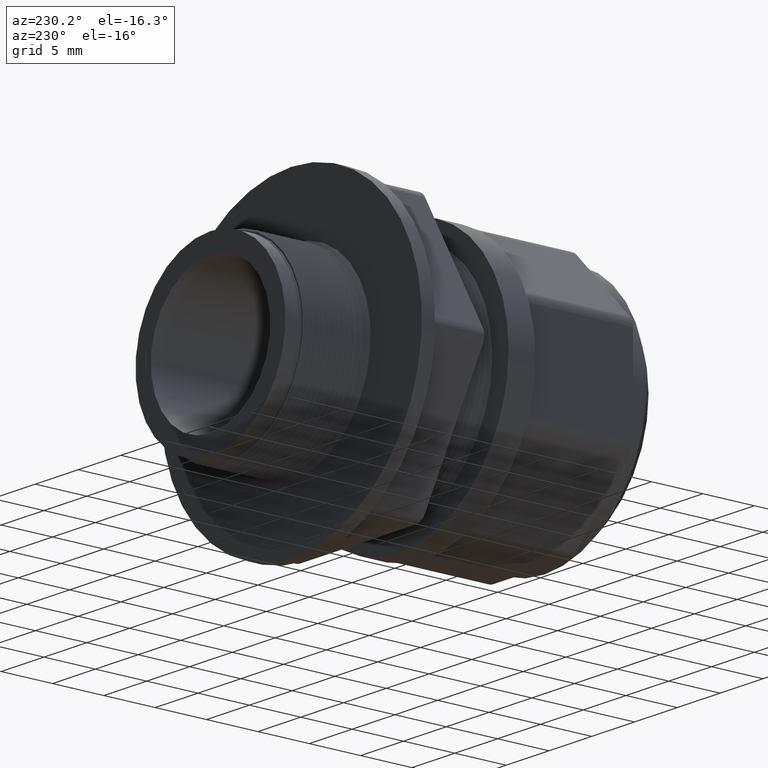
[diagram: clean part render]
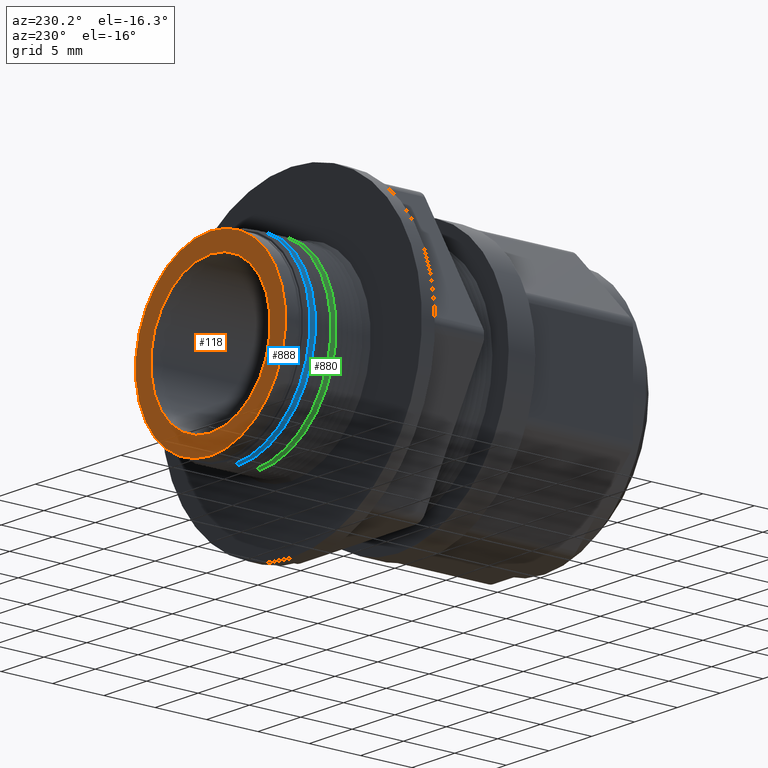
[diagram: same view with three faces highlighted in distinct colors, each labeled with its STEP entity id]
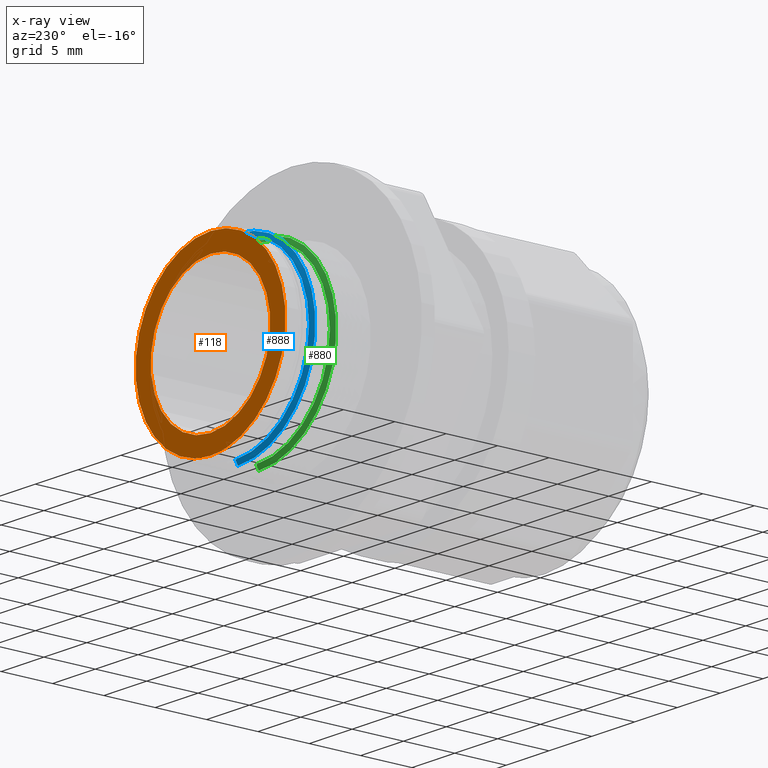
[diagram: x-ray of the same camera — body ghosted, the three highlighted faces saturated]
A machine part, auxiliary view with three faces highlighted in distinct colors.
The next image is the same camera in x-ray (body ghosted, the three faces saturated) — at least one of them is partly hidden behind the body in this view.
Their STEP definitions:

[orange] entity #118 — the highlighted planar face has unit normal (0, 1, 0).
#84 = EDGE_CURVE ( 'NONE', #90, #87, #1489, .T. ) ;
#87 = VERTEX_POINT ( 'NONE', #1562 ) ;
#90 = VERTEX_POINT ( 'NONE', #1561 ) ;
#103 = EDGE_LOOP ( 'NONE', ( #6280, #6272 ) ) ;
#104 = ORIENTED_EDGE ( 'NONE', *, *, #121, .T. ) ;
#105 = EDGE_LOOP ( 'NONE', ( #106, #104 ) ) ;
#106 = ORIENTED_EDGE ( 'NONE', *, *, #124, .T. ) ;
#116 = VERTEX_POINT ( 'NONE', #1594 ) ;
#118 = ADVANCED_FACE ( 'NONE', ( #1639, #1638 ), #1620, .T. ) ;
#121 = EDGE_CURVE ( 'NONE', #128, #116, #1675, .T. ) ;
#124 = EDGE_CURVE ( 'NONE', #116, #128, #1665, .T. ) ;
#128 = VERTEX_POINT ( 'NONE', #1660 ) ;
#1485 = DIRECTION ( 'NONE',  ( 0.0000000000000000000, 0.0000000000000000000, 1.000000000000000000 ) ) ;
#1486 = DIRECTION ( 'NONE',  ( 0.0000000000000000000, 1.000000000000000000, 0.0000000000000000000 ) ) ;
#1487 = CARTESIAN_POINT ( 'NONE',  ( 0.0000000000000000000, 1.330000000000000100, 0.0000000000000000000 ) ) ;
#1488 = AXIS2_PLACEMENT_3D ( 'NONE', #1487, #1486, #1485 ) ;
#1489 = CIRCLE ( 'NONE', #1488, 0.2749999999999999700 ) ;
#1561 = CARTESIAN_POINT ( 'NONE',  ( 3.367778697655221300E-017, 1.330000000000000100, -0.2750000000000000200 ) ) ;
#1562 = CARTESIAN_POINT ( 'NONE',  ( 0.0000000000000000000, 1.330000000000000100, 0.2749999999999999700 ) ) ;
#1594 = CARTESIAN_POINT ( 'NONE',  ( 0.0000000000000000000, 1.330000000000000100, 0.3449220884996295200 ) ) ;
#1619 = AXIS2_PLACEMENT_3D ( 'NONE', #1678, #1677, #1676 ) ;
#1620 = PLANE ( 'NONE',  #1619 ) ;
#1638 = FACE_BOUND ( 'NONE', #103, .T. ) ;
#1639 = FACE_OUTER_BOUND ( 'NONE', #105, .T. ) ;
#1660 = CARTESIAN_POINT ( 'NONE',  ( 4.224077316362913800E-017, 1.330000000000000100, -0.3449220884996295200 ) ) ;
#1661 = DIRECTION ( 'NONE',  ( 0.0000000000000000000, 0.0000000000000000000, 1.000000000000000000 ) ) ;
#1662 = DIRECTION ( 'NONE',  ( 0.0000000000000000000, 1.000000000000000000, 0.0000000000000000000 ) ) ;
#1663 = CARTESIAN_POINT ( 'NONE',  ( 0.0000000000000000000, 1.330000000000000100, 0.0000000000000000000 ) ) ;
#1664 = AXIS2_PLACEMENT_3D ( 'NONE', #1663, #1662, #1661 ) ;
#1665 = CIRCLE ( 'NONE', #1664, 0.3449220884996295200 ) ;
#1671 = DIRECTION ( 'NONE',  ( 0.0000000000000000000, 0.0000000000000000000, 1.000000000000000000 ) ) ;
#1672 = DIRECTION ( 'NONE',  ( 0.0000000000000000000, 1.000000000000000000, 0.0000000000000000000 ) ) ;
#1673 = CARTESIAN_POINT ( 'NONE',  ( 0.0000000000000000000, 1.330000000000000100, 0.0000000000000000000 ) ) ;
#1674 = AXIS2_PLACEMENT_3D ( 'NONE', #1673, #1672, #1671 ) ;
#1675 = CIRCLE ( 'NONE', #1674, 0.3449220884996295200 ) ;
#1676 = DIRECTION ( 'NONE',  ( 0.0000000000000000000, 0.0000000000000000000, 1.000000000000000000 ) ) ;
#1677 = DIRECTION ( 'NONE',  ( 0.0000000000000000000, 1.000000000000000000, 0.0000000000000000000 ) ) ;
#1678 = CARTESIAN_POINT ( 'NONE',  ( -0.3449220884996295200, 1.330000000000000100, 0.0000000000000000000 ) ) ;
#5932 = DIRECTION ( 'NONE',  ( 0.0000000000000000000, 0.0000000000000000000, 1.000000000000000000 ) ) ;
#5933 = DIRECTION ( 'NONE',  ( 0.0000000000000000000, 1.000000000000000000, 0.0000000000000000000 ) ) ;
#5934 = CARTESIAN_POINT ( 'NONE',  ( 0.0000000000000000000, 1.330000000000000100, 0.0000000000000000000 ) ) ;
#5935 = AXIS2_PLACEMENT_3D ( 'NONE', #5934, #5933, #5932 ) ;
#5936 = CIRCLE ( 'NONE', #5935, 0.2749999999999999700 ) ;
#6272 = ORIENTED_EDGE ( 'NONE', *, *, #84, .F. ) ;
#6277 = EDGE_CURVE ( 'NONE', #87, #90, #5936, .T. ) ;
#6280 = ORIENTED_EDGE ( 'NONE', *, *, #6277, .F. ) ;

[blue] entity #888 — the highlighted conical surface has half-angle 60.018 deg.
#693 = VERTEX_POINT ( 'NONE', #3620 ) ;
#694 = VERTEX_POINT ( 'NONE', #3619 ) ;
#756 = EDGE_CURVE ( 'NONE', #693, #757, #3835, .T. ) ;
#757 = VERTEX_POINT ( 'NONE', #3831 ) ;
#760 = VERTEX_POINT ( 'NONE', #3878 ) ;
#762 = EDGE_CURVE ( 'NONE', #694, #760, #3876, .T. ) ;
#887 = EDGE_CURVE ( 'NONE', #757, #760, #4393, .T. ) ;
#888 = ADVANCED_FACE ( 'NONE', ( #4389 ), #4424, .T. ) ;
#889 = EDGE_LOOP ( 'NONE', ( #890, #891, #893, #894 ) ) ;
#890 = ORIENTED_EDGE ( 'NONE', *, *, #756, .F. ) ;
#891 = ORIENTED_EDGE ( 'NONE', *, *, #892, .F. ) ;
#892 = EDGE_CURVE ( 'NONE', #694, #693, #4419, .T. ) ;
#893 = ORIENTED_EDGE ( 'NONE', *, *, #762, .T. ) ;
#894 = ORIENTED_EDGE ( 'NONE', *, *, #887, .F. ) ;
#3619 = CARTESIAN_POINT ( 'NONE',  ( 0.0000000000000000000, 1.234991837162775100, -0.3390145267796637100 ) ) ;
#3620 = CARTESIAN_POINT ( 'NONE',  ( 4.257788060767578200E-017, 1.234991837162775100, 0.3390145267796637100 ) ) ;
#3831 = CARTESIAN_POINT ( 'NONE',  ( 0.0000000000000000000, 1.224999092359754500, 0.3563350325760648600 ) ) ;
#3832 = DIRECTION ( 'NONE',  ( 1.060767553453816500E-016, -0.4997279054258413900, 0.8661824406778870800 ) ) ;
#3833 = VECTOR ( 'NONE', #3832, 39.37007874015748100 ) ;
#3834 = CARTESIAN_POINT ( 'NONE',  ( 4.469960816887838600E-017, 1.220000000000000200, 0.3649999999999999400 ) ) ;
#3835 = LINE ( 'NONE', #3834, #3833 ) ;
#3873 = DIRECTION ( 'NONE',  ( 0.0000000000000000000, -0.4997279054258413900, -0.8661824406778870800 ) ) ;
#3874 = VECTOR ( 'NONE', #3873, 39.37007874015748100 ) ;
#3875 = CARTESIAN_POINT ( 'NONE',  ( 0.0000000000000000000, 1.220000000000000200, -0.3649999999999999400 ) ) ;
#3876 = LINE ( 'NONE', #3875, #3874 ) ;
#3878 = CARTESIAN_POINT ( 'NONE',  ( 4.363845570683456900E-017, 1.224999092359754500, -0.3563350325760648600 ) ) ;
#4389 = FACE_OUTER_BOUND ( 'NONE', #889, .T. ) ;
#4390 = DIRECTION ( 'NONE',  ( 0.0000000000000000000, 0.0000000000000000000, -1.000000000000000000 ) ) ;
#4391 = DIRECTION ( 'NONE',  ( 0.0000000000000000000, -1.000000000000000000, 0.0000000000000000000 ) ) ;
#4392 = AXIS2_PLACEMENT_3D ( 'NONE', #4399, #4391, #4390 ) ;
#4393 = CIRCLE ( 'NONE', #4392, 0.3563350325760648600 ) ;
#4399 = CARTESIAN_POINT ( 'NONE',  ( 0.0000000000000000000, 1.224999092359754500, 0.0000000000000000000 ) ) ;
#4416 = DIRECTION ( 'NONE',  ( 0.0000000000000000000, 0.0000000000000000000, 1.000000000000000000 ) ) ;
#4417 = DIRECTION ( 'NONE',  ( 0.0000000000000000000, 1.000000000000000000, 0.0000000000000000000 ) ) ;
#4418 = AXIS2_PLACEMENT_3D ( 'NONE', #4425, #4417, #4416 ) ;
#4419 = CIRCLE ( 'NONE', #4418, 0.3390145267796637100 ) ;
#4421 = DIRECTION ( 'NONE',  ( 0.0000000000000000000, 0.0000000000000000000, -1.000000000000000000 ) ) ;
#4422 = DIRECTION ( 'NONE',  ( 0.0000000000000000000, -1.000000000000000000, 0.0000000000000000000 ) ) ;
#4423 = AXIS2_PLACEMENT_3D ( 'NONE', #4426, #4422, #4421 ) ;
#4424 = CONICAL_SURFACE ( 'NONE', #4423, 0.3649999999999999400, 1.047511710461942900 ) ;
#4425 = CARTESIAN_POINT ( 'NONE',  ( 0.0000000000000000000, 1.234991837162775100, 0.0000000000000000000 ) ) ;
#4426 = CARTESIAN_POINT ( 'NONE',  ( 0.0000000000000000000, 1.220000000000000200, 0.0000000000000000000 ) ) ;

[green] entity #880 — the highlighted conical surface has half-angle 60.018 deg.
#183 = VERTEX_POINT ( 'NONE', #1822 ) ;
#184 = VERTEX_POINT ( 'NONE', #1875 ) ;
#190 = VERTEX_POINT ( 'NONE', #1869 ) ;
#192 = EDGE_CURVE ( 'NONE', #184, #197, #1868, .T. ) ;
#193 = EDGE_CURVE ( 'NONE', #183, #190, #1864, .T. ) ;
#197 = VERTEX_POINT ( 'NONE', #1923 ) ;
#805 = EDGE_LOOP ( 'NONE', ( #806, #807, #860, #861 ) ) ;
#806 = ORIENTED_EDGE ( 'NONE', *, *, #192, .F. ) ;
#807 = ORIENTED_EDGE ( 'NONE', *, *, #859, .F. ) ;
#859 = EDGE_CURVE ( 'NONE', #183, #184, #4259, .T. ) ;
#860 = ORIENTED_EDGE ( 'NONE', *, *, #193, .T. ) ;
#861 = ORIENTED_EDGE ( 'NONE', *, *, #879, .F. ) ;
#879 = EDGE_CURVE ( 'NONE', #197, #190, #4340, .T. ) ;
#880 = ADVANCED_FACE ( 'NONE', ( #4336 ), #4372, .T. ) ;
#1822 = CARTESIAN_POINT ( 'NONE',  ( 0.0000000000000000000, 1.154991837162775000, -0.3390145267796637100 ) ) ;
#1860 = DIRECTION ( 'NONE',  ( 0.0000000000000000000, -0.4997279054258413900, -0.8661824406778870800 ) ) ;
#1861 = VECTOR ( 'NONE', #1860, 39.37007874015748100 ) ;
#1862 = CARTESIAN_POINT ( 'NONE',  ( 0.0000000000000000000, 1.139999999999999900, -0.3649999999999999400 ) ) ;
#1864 = LINE ( 'NONE', #1862, #1861 ) ;
#1865 = DIRECTION ( 'NONE',  ( 1.060767553453816500E-016, -0.4997279054258413900, 0.8661824406778870800 ) ) ;
#1866 = VECTOR ( 'NONE', #1865, 39.37007874015748100 ) ;
#1867 = CARTESIAN_POINT ( 'NONE',  ( 4.469960816887838600E-017, 1.139999999999999900, 0.3649999999999999400 ) ) ;
#1868 = LINE ( 'NONE', #1867, #1866 ) ;
#1869 = CARTESIAN_POINT ( 'NONE',  ( 4.363845570683453800E-017, 1.144999092359754400, -0.3563350325760645800 ) ) ;
#1875 = CARTESIAN_POINT ( 'NONE',  ( 4.257788060767576300E-017, 1.154991837162775000, 0.3390145267796637100 ) ) ;
#1923 = CARTESIAN_POINT ( 'NONE',  ( 0.0000000000000000000, 1.144999092359754400, 0.3563350325760645800 ) ) ;
#4256 = DIRECTION ( 'NONE',  ( 0.0000000000000000000, 0.0000000000000000000, 1.000000000000000000 ) ) ;
#4257 = DIRECTION ( 'NONE',  ( 0.0000000000000000000, 1.000000000000000000, 0.0000000000000000000 ) ) ;
#4258 = AXIS2_PLACEMENT_3D ( 'NONE', #4265, #4257, #4256 ) ;
#4259 = CIRCLE ( 'NONE', #4258, 0.3390145267796637100 ) ;
#4265 = CARTESIAN_POINT ( 'NONE',  ( 0.0000000000000000000, 1.154991837162775000, 0.0000000000000000000 ) ) ;
#4336 = FACE_OUTER_BOUND ( 'NONE', #805, .T. ) ;
#4337 = DIRECTION ( 'NONE',  ( 0.0000000000000000000, 0.0000000000000000000, -1.000000000000000000 ) ) ;
#4338 = DIRECTION ( 'NONE',  ( 0.0000000000000000000, -1.000000000000000000, 0.0000000000000000000 ) ) ;
#4339 = AXIS2_PLACEMENT_3D ( 'NONE', #4346, #4338, #4337 ) ;
#4340 = CIRCLE ( 'NONE', #4339, 0.3563350325760645800 ) ;
#4346 = CARTESIAN_POINT ( 'NONE',  ( 0.0000000000000000000, 1.144999092359754400, 0.0000000000000000000 ) ) ;
#4369 = DIRECTION ( 'NONE',  ( 0.0000000000000000000, 0.0000000000000000000, -1.000000000000000000 ) ) ;
#4370 = DIRECTION ( 'NONE',  ( 0.0000000000000000000, -1.000000000000000000, 0.0000000000000000000 ) ) ;
#4371 = AXIS2_PLACEMENT_3D ( 'NONE', #4374, #4370, #4369 ) ;
#4372 = CONICAL_SURFACE ( 'NONE', #4371, 0.3649999999999999400, 1.047511710461942900 ) ;
#4374 = CARTESIAN_POINT ( 'NONE',  ( 0.0000000000000000000, 1.139999999999999900, 0.0000000000000000000 ) ) ;